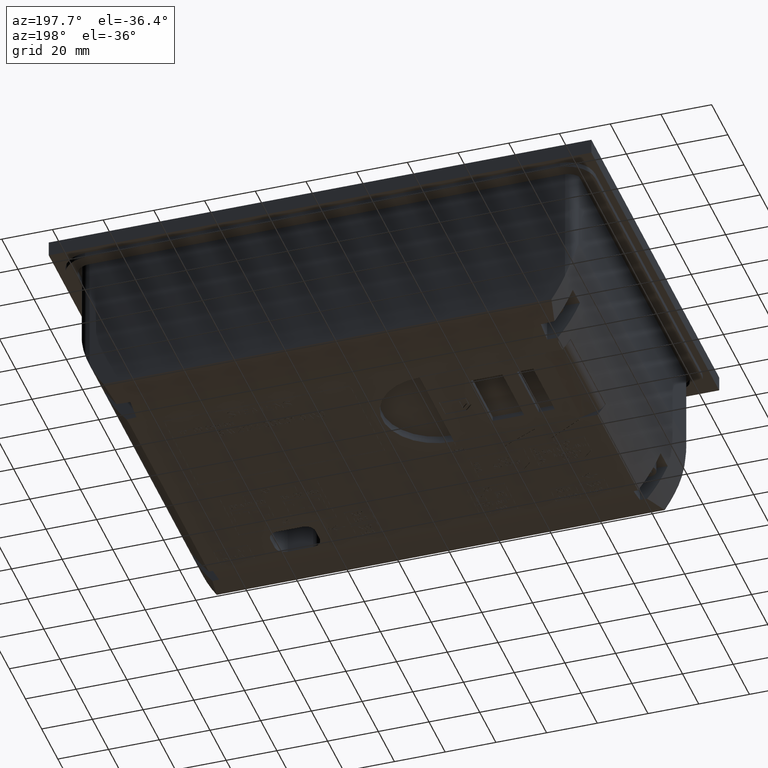
[diagram: clean part render]
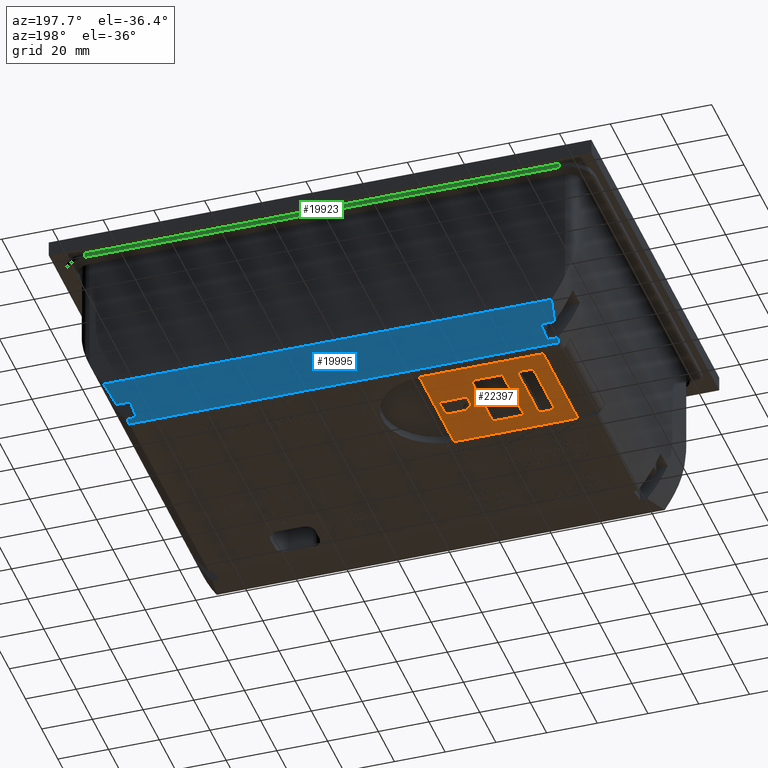
[diagram: same view with three faces highlighted in distinct colors, each labeled with its STEP entity id]
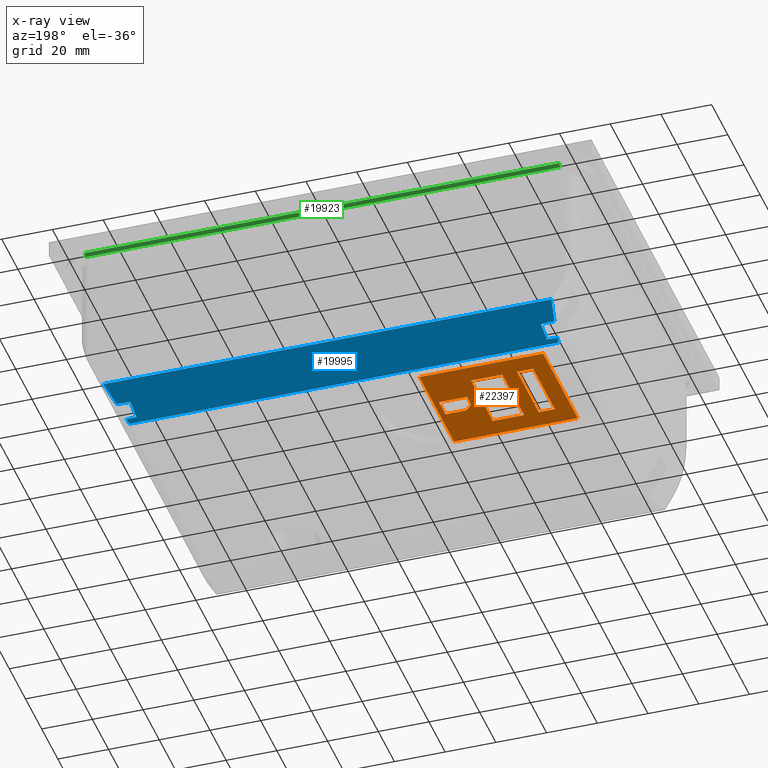
[diagram: x-ray of the same camera — body ghosted, the three highlighted faces saturated]
A machine part, auxiliary view with three faces highlighted in distinct colors.
The next image is the same camera in x-ray (body ghosted, the three faces saturated) — at least one of them is partly hidden behind the body in this view.
Their STEP definitions:

[orange] entity #22397 — the highlighted planar face has unit normal (0, 0, 1).
#6622=LINE('',#91458,#12273);
#6623=LINE('',#91461,#12274);
#6624=LINE('',#91463,#12275);
#6625=LINE('',#91465,#12276);
#6626=LINE('',#91466,#12277);
#6627=LINE('',#91469,#12278);
#6628=LINE('',#91471,#12279);
#6629=LINE('',#91473,#12280);
#6630=LINE('',#91474,#12281);
#6631=LINE('',#91477,#12282);
#6632=LINE('',#91479,#12283);
#6633=LINE('',#91481,#12284);
#6634=LINE('',#91482,#12285);
#6635=LINE('',#91485,#12286);
#6636=LINE('',#91487,#12287);
#6637=LINE('',#91489,#12288);
#6638=LINE('',#91491,#12289);
#12273=VECTOR('',#64264,1.);
#12274=VECTOR('',#64265,1.);
#12275=VECTOR('',#64266,1.);
#12276=VECTOR('',#64267,1.);
#12277=VECTOR('',#64268,1.);
#12278=VECTOR('',#64269,1.);
#12279=VECTOR('',#64270,1.);
#12280=VECTOR('',#64271,1.);
#12281=VECTOR('',#64272,1.);
#12282=VECTOR('',#64273,1.);
#12283=VECTOR('',#64274,1.);
#12284=VECTOR('',#64275,1.);
#12285=VECTOR('',#64276,1.);
#12286=VECTOR('',#64277,1.);
#12287=VECTOR('',#64278,1.);
#12288=VECTOR('',#64279,1.);
#12289=VECTOR('',#64280,1.);
#17203=PLANE('',#52997);
#22397=ADVANCED_FACE('',(#23166,#23167,#23168,#23169),#17203,.F.);
#23166=FACE_BOUND('',#26152,.T.);
#23167=FACE_BOUND('',#26153,.T.);
#23168=FACE_BOUND('',#26154,.T.);
#23169=FACE_BOUND('',#26155,.T.);
#26152=EDGE_LOOP('',(#38843,#38844,#38845,#38846));
#26153=EDGE_LOOP('',(#38847,#38848,#38849,#38850));
#26154=EDGE_LOOP('',(#38851,#38852,#38853,#38854));
#26155=EDGE_LOOP('',(#38855,#38856,#38857,#38858,#38859));
#38843=ORIENTED_EDGE('',*,*,#49674,.F.);
#38844=ORIENTED_EDGE('',*,*,#49675,.F.);
#38845=ORIENTED_EDGE('',*,*,#49676,.F.);
#38846=ORIENTED_EDGE('',*,*,#49677,.F.);
#38847=ORIENTED_EDGE('',*,*,#49678,.T.);
#38848=ORIENTED_EDGE('',*,*,#49679,.F.);
#38849=ORIENTED_EDGE('',*,*,#49680,.F.);
#38850=ORIENTED_EDGE('',*,*,#49681,.T.);
#38851=ORIENTED_EDGE('',*,*,#49682,.T.);
#38852=ORIENTED_EDGE('',*,*,#49683,.T.);
#38853=ORIENTED_EDGE('',*,*,#49684,.T.);
#38854=ORIENTED_EDGE('',*,*,#49685,.T.);
#38855=ORIENTED_EDGE('',*,*,#49686,.T.);
#38856=ORIENTED_EDGE('',*,*,#49687,.T.);
#38857=ORIENTED_EDGE('',*,*,#49688,.T.);
#38858=ORIENTED_EDGE('',*,*,#49689,.T.);
#38859=ORIENTED_EDGE('',*,*,#49690,.T.);
#43288=VERTEX_POINT('',#91459);
#43289=VERTEX_POINT('',#91460);
#43290=VERTEX_POINT('',#91462);
#43291=VERTEX_POINT('',#91464);
#43292=VERTEX_POINT('',#91467);
#43293=VERTEX_POINT('',#91468);
#43294=VERTEX_POINT('',#91470);
#43295=VERTEX_POINT('',#91472);
#43296=VERTEX_POINT('',#91475);
#43297=VERTEX_POINT('',#91476);
#43298=VERTEX_POINT('',#91478);
#43299=VERTEX_POINT('',#91480);
#43300=VERTEX_POINT('',#91483);
#43301=VERTEX_POINT('',#91484);
#43302=VERTEX_POINT('',#91486);
#43303=VERTEX_POINT('',#91488);
#43304=VERTEX_POINT('',#91490);
#49674=EDGE_CURVE('',#43288,#43289,#6622,.T.);
#49675=EDGE_CURVE('',#43290,#43288,#6623,.T.);
#49676=EDGE_CURVE('',#43291,#43290,#6624,.T.);
#49677=EDGE_CURVE('',#43289,#43291,#6625,.T.);
#49678=EDGE_CURVE('',#43292,#43293,#6626,.T.);
#49679=EDGE_CURVE('',#43294,#43293,#6627,.T.);
#49680=EDGE_CURVE('',#43295,#43294,#6628,.T.);
#49681=EDGE_CURVE('',#43295,#43292,#6629,.T.);
#49682=EDGE_CURVE('',#43296,#43297,#6630,.T.);
#49683=EDGE_CURVE('',#43297,#43298,#6631,.T.);
#49684=EDGE_CURVE('',#43298,#43299,#6632,.T.);
#49685=EDGE_CURVE('',#43299,#43296,#6633,.T.);
#49686=EDGE_CURVE('',#43300,#43301,#6634,.T.);
#49687=EDGE_CURVE('',#43301,#43302,#6635,.T.);
#49688=EDGE_CURVE('',#43302,#43303,#6636,.T.);
#49689=EDGE_CURVE('',#43303,#43304,#6637,.T.);
#49690=EDGE_CURVE('',#43304,#43300,#6638,.T.);
#52997=AXIS2_PLACEMENT_3D('',#91492,#64281,#64282);
#64264=DIRECTION('',(-2.91445848928636E-011,1.,-3.65212902658751E-020));
#64265=DIRECTION('',(-1.,-1.7851496621565E-010,-1.25310723759245E-009));
#64266=DIRECTION('',(2.91451016133376E-011,-1.,3.65219377720409E-020));
#64267=DIRECTION('',(1.,1.78514966148795E-010,1.25310723759245E-009));
#64268=DIRECTION('',(-1.,0.,-1.25310723759245E-009));
#64269=DIRECTION('',(0.,-1.,0.));
#64270=DIRECTION('',(-1.,0.,-1.25310723759245E-009));
#64271=DIRECTION('',(0.,-1.,0.));
#64272=DIRECTION('',(-1.,-7.140737732797E-011,-1.25310723759245E-009));
#64273=DIRECTION('',(2.91451016133376E-011,-1.,3.65219377720409E-020));
#64274=DIRECTION('',(1.,7.14044293848278E-011,1.25310723759245E-009));
#64275=DIRECTION('',(-2.91449724332191E-011,1.,-3.65217758954994E-020));
#64276=DIRECTION('',(0.,-1.,0.));
#64277=DIRECTION('',(0.707106781186548,-0.707106781186547,8.8608062765984E-010));
#64278=DIRECTION('',(1.,0.,1.25310725232033E-009));
#64279=DIRECTION('',(0.,1.,0.));
#64280=DIRECTION('',(-1.,0.,-1.25310724943691E-009));
#64281=DIRECTION('',(-1.25310723759245E-009,0.,1.));
#64282=DIRECTION('',(1.,0.,1.25310723755011E-009));
#91458=CARTESIAN_POINT('',(-42.3121376768033,42.9019999987664,-1.89999998678827));
#91459=CARTESIAN_POINT('',(-42.3121376757871,8.0375645485555,-1.89999998280499));
#91460=CARTESIAN_POINT('',(-42.3121376765699,34.8950019971096,-1.89999998280499));
#91461=CARTESIAN_POINT('',(0.0165808718131422,8.03756455611181,-1.89999993374584));
#91462=CARTESIAN_POINT('',(-35.9547002272291,8.0375645496904,-1.89999997882172));
#91463=CARTESIAN_POINT('',(-35.9547002282452,42.9019999989516,-1.89999997882172));
#91464=CARTESIAN_POINT('',(-35.954700225631,34.8950019982445,-1.89999997882172));
#91465=CARTESIAN_POINT('',(0.0165808670186877,34.8950020046659,-1.89999993374584));
#91466=CARTESIAN_POINT('',(0.0165808655893187,0.,-1.89999993374584));
#91467=CARTESIAN_POINT('',(0.0165808655893211,0.,-1.89999993374584));
#91468=CARTESIAN_POINT('',(-48.81855296411,0.,-1.8999999949415));
#91469=CARTESIAN_POINT('',(-48.81855296411,42.902,-1.8999999949415));
#91470=CARTESIAN_POINT('',(-48.81855296411,42.902,-1.8999999949415));
#91471=CARTESIAN_POINT('',(0.0165808655893187,42.902,-1.89999993374584));
#91472=CARTESIAN_POINT('',(0.0165808655893211,42.902,-1.89999993374584));
#91473=CARTESIAN_POINT('',(0.0165808655893211,42.902,-1.89999993374584));
#91474=CARTESIAN_POINT('',(0.0165808661610774,34.8950019993908,-1.89999993374584));
#91475=CARTESIAN_POINT('',(-17.8047002280159,34.8950019981182,-1.89999996382042));
#91476=CARTESIAN_POINT('',(-30.1621376765738,34.8950019972358,-1.89999997156301));
#91477=CARTESIAN_POINT('',(-30.1621376768072,42.9019999991204,-1.89999997156301));
#91478=CARTESIAN_POINT('',(-30.162137675791,8.03756454868176,-1.89999996382042));
#91479=CARTESIAN_POINT('',(0.0165808680787938,8.03756455083666,-1.89999993374584));
#91480=CARTESIAN_POINT('',(-17.8047002272331,8.03756454956415,-1.89999995607782));
#91481=CARTESIAN_POINT('',(-17.8047002282492,42.9019999994806,-1.89999995607782));
#91482=CARTESIAN_POINT('',(-13.1860598577541,25.4662832734,-1.89999995029017));
#91483=CARTESIAN_POINT('',(-13.18605985813,25.4662832734,-1.89999995029017));
#91484=CARTESIAN_POINT('',(-13.1860598577541,20.266283273391,-1.89999995029017));
#91485=CARTESIAN_POINT('',(-13.1860598577541,20.266283273391,-1.89999995029017));
#91486=CARTESIAN_POINT('',(-10.3860598577631,17.4662832734,-1.89999994678147));
#91487=CARTESIAN_POINT('',(-10.3860598577631,17.4662832734,-1.89999994678147));
#91488=CARTESIAN_POINT('',(-2.18605985775406,17.4662832734,-1.89999993650599));
#91489=CARTESIAN_POINT('',(-2.18605985775406,17.4662832734,-1.89999993650599));
#91490=CARTESIAN_POINT('',(-2.18605985775406,25.4662832734,-1.89999993650599));
#91491=CARTESIAN_POINT('',(-2.18605985775406,25.4662832734,-1.89999993650599));
#91492=CARTESIAN_POINT('',(0.0165808655893187,42.902,-1.89999993374584));

[blue] entity #19995 — the highlighted cylindrical surface (partial cylindrical patch) has radius 150 mm, axis along (-1, 0, 0).
#95=ELLIPSE('',#50681,3438.83786308085,150.000000977651);
#96=ELLIPSE('',#50683,3438.83786248065,150.000000977651);
#97=ELLIPSE('',#50684,3438.83786248065,150.000000977651);
#98=ELLIPSE('',#50686,3438.83786308085,150.000000977651);
#433=B_SPLINE_CURVE_WITH_KNOTS('',3,(#66333,#66334,#66335,#66336),.UNSPECIFIED.,
 .F.,.F.,(4,4),(0.,1.),.UNSPECIFIED.);
#434=B_SPLINE_CURVE_WITH_KNOTS('',3,(#66344,#66345,#66346,#66347),.UNSPECIFIED.,
 .F.,.F.,(4,4),(0.,1.),.UNSPECIFIED.);
#439=B_SPLINE_CURVE_WITH_KNOTS('',3,(#66430,#66431,#66432,#66433),.UNSPECIFIED.,
 .F.,.F.,(4,4),(0.,1.),.UNSPECIFIED.);
#440=B_SPLINE_CURVE_WITH_KNOTS('',3,(#66441,#66442,#66443,#66444),.UNSPECIFIED.,
 .F.,.F.,(4,4),(0.,1.),.UNSPECIFIED.);
#1831=LINE('',#66286,#7216);
#1860=LINE('',#66469,#7245);
#7216=VECTOR('',#54503,1.);
#7245=VECTOR('',#54580,1.);
#17478=FACE_OUTER_BOUND('',#23531,.T.);
#19995=ADVANCED_FACE('',(#17478),#22536,.T.);
#22536=CYLINDRICAL_SURFACE('',#50687,150.000000977651);
#23531=EDGE_LOOP('',(#27659,#27660,#27661,#27662,#27663,#27664,#27665,#27666,
#27667,#27668,#27669,#27670));
#27659=ORIENTED_EDGE('',*,*,#44099,.T.);
#27660=ORIENTED_EDGE('',*,*,#44146,.T.);
#27661=ORIENTED_EDGE('',*,*,#44147,.T.);
#27662=ORIENTED_EDGE('',*,*,#44148,.T.);
#27663=ORIENTED_EDGE('',*,*,#44095,.T.);
#27664=ORIENTED_EDGE('',*,*,#44074,.T.);
#27665=ORIENTED_EDGE('',*,*,#44119,.T.);
#27666=ORIENTED_EDGE('',*,*,#44149,.T.);
#27667=ORIENTED_EDGE('',*,*,#44150,.T.);
#27668=ORIENTED_EDGE('',*,*,#44151,.T.);
#27669=ORIENTED_EDGE('',*,*,#44115,.T.);
#27670=ORIENTED_EDGE('',*,*,#44132,.F.);
#39554=VERTEX_POINT('',#66285);
#39555=VERTEX_POINT('',#66287);
#39573=VERTEX_POINT('',#66337);
#39576=VERTEX_POINT('',#66343);
#39577=VERTEX_POINT('',#66348);
#39590=VERTEX_POINT('',#66429);
#39591=VERTEX_POINT('',#66434);
#39594=VERTEX_POINT('',#66440);
#39611=VERTEX_POINT('',#66498);
#39612=VERTEX_POINT('',#66500);
#39613=VERTEX_POINT('',#66503);
#39614=VERTEX_POINT('',#66505);
#44074=EDGE_CURVE('',#39555,#39554,#1831,.T.);
#44095=EDGE_CURVE('',#39573,#39555,#433,.T.);
#44099=EDGE_CURVE('',#39577,#39576,#434,.T.);
#44115=EDGE_CURVE('',#39591,#39590,#439,.T.);
#44119=EDGE_CURVE('',#39554,#39594,#440,.T.);
#44132=EDGE_CURVE('',#39577,#39590,#1860,.T.);
#44146=EDGE_CURVE('',#39576,#39611,#95,.T.);
#44147=EDGE_CURVE('',#39611,#39612,#49989,.T.);
#44148=EDGE_CURVE('',#39612,#39573,#96,.T.);
#44149=EDGE_CURVE('',#39594,#39613,#97,.T.);
#44150=EDGE_CURVE('',#39613,#39614,#49990,.T.);
#44151=EDGE_CURVE('',#39614,#39591,#98,.T.);
#49989=CIRCLE('',#50682,150.000000977651);
#49990=CIRCLE('',#50685,150.000000977651);
#50681=AXIS2_PLACEMENT_3D('',#66497,#54614,#54615);
#50682=AXIS2_PLACEMENT_3D('',#66499,#54616,#54617);
#50683=AXIS2_PLACEMENT_3D('',#66501,#54618,#54619);
#50684=AXIS2_PLACEMENT_3D('',#66502,#54620,#54621);
#50685=AXIS2_PLACEMENT_3D('',#66504,#54622,#54623);
#50686=AXIS2_PLACEMENT_3D('',#66506,#54624,#54625);
#50687=AXIS2_PLACEMENT_3D('',#66507,#54626,#54627);
#54503=DIRECTION('',(-1.,0.,0.));
#54580=DIRECTION('',(-1.,0.,0.));
#54614=DIRECTION('',(-0.043619387406438,0.999048221580064,0.));
#54615=DIRECTION('',(-0.999048221580063,-0.0436193874064379,0.));
#54616=DIRECTION('',(-1.,0.,0.));
#54617=DIRECTION('',(0.,0.,1.));
#54618=DIRECTION('',(-0.0436193874140512,-0.999048221579731,0.));
#54619=DIRECTION('',(-0.999048221579731,0.0436193874140512,0.));
#54620=DIRECTION('',(0.0436193874140512,-0.999048221579731,0.));
#54621=DIRECTION('',(-0.999048221579731,-0.0436193874140512,0.));
#54622=DIRECTION('',(1.,0.,0.));
#54623=DIRECTION('',(0.,0.,-1.));
#54624=DIRECTION('',(0.043619387406438,0.999048221580064,0.));
#54625=DIRECTION('',(-0.999048221580063,0.0436193874064379,0.));
#54626=DIRECTION('',(-1.,0.,0.));
#54627=DIRECTION('',(0.,0.,1.));
#66285=CARTESIAN_POINT('',(-84.6864665830328,49.5000000250498,-69.0000000000722));
#66286=CARTESIAN_POINT('',(101.98540477914,49.5000000250498,-69.0000000000722));
#66287=CARTESIAN_POINT('',(84.6139886853391,49.5000000250498,-69.0000000000722));
#66333=CARTESIAN_POINT('',(84.9766973603551,51.984444300411,-68.5576021675339));
#66334=CARTESIAN_POINT('',(84.8514876000279,51.1587129393417,-68.711814859945));
#66335=CARTESIAN_POINT('',(84.7304728165404,50.3305890308896,-68.8592971241312));
#66336=CARTESIAN_POINT('',(84.6139886853391,49.5000000250498,-69.0000000000722));
#66337=CARTESIAN_POINT('',(84.9766973603551,51.984444300411,-68.5576021675339));
#66343=CARTESIAN_POINT('',(86.3395467440313,60.0750589887513,-66.814336646516));
#66344=CARTESIAN_POINT('',(88.3211971106209,70.01459522086,-64.0180751598463));
#66345=CARTESIAN_POINT('',(87.624231477273,66.7355487725983,-65.0636145236366));
#66346=CARTESIAN_POINT('',(86.955702167718,63.4237657687399,-65.99551150518));
#66347=CARTESIAN_POINT('',(86.3395467440409,60.0750589887496,-66.8143366465163));
#66348=CARTESIAN_POINT('',(88.3211971106207,70.01459522086,-64.0180751598466));
#66429=CARTESIAN_POINT('',(-88.3773316654411,70.01459522086,-64.0180751598466));
#66430=CARTESIAN_POINT('',(-86.4049088601822,60.0779127603746,-66.8136388132069));
#66431=CARTESIAN_POINT('',(-87.018197041221,63.4255835382713,-65.994997507914));
#66432=CARTESIAN_POINT('',(-87.6836186028934,66.7364276589531,-65.0633342865937));
#66433=CARTESIAN_POINT('',(-88.3773316654411,70.014595220859,-64.0180751598466));
#66434=CARTESIAN_POINT('',(-86.4049088601776,60.0779127603754,-66.8136388132067));
#66440=CARTESIAN_POINT('',(-85.0470959344576,51.9813706322832,-68.5581761693029));
#66441=CARTESIAN_POINT('',(-84.6864665830328,49.5000000250498,-69.0000000000722));
#66442=CARTESIAN_POINT('',(-84.8022861209518,50.3295520206521,-68.8594727950367));
#66443=CARTESIAN_POINT('',(-84.9226068103095,51.1566516714687,-68.7121819958151));
#66444=CARTESIAN_POINT('',(-85.0470959344631,51.9813706322823,-68.5581761693031));
#66469=CARTESIAN_POINT('',(101.98540477914,70.014595220859,-64.0180751598466));
#66497=CARTESIAN_POINT('',(-729.683270789699,24.4467333067318,78.892981983645));
#66498=CARTESIAN_POINT('',(80.98724977297,59.8413726560477,-66.8712790635237));
#66499=CARTESIAN_POINT('',(80.98724977297,24.4467333067318,78.892981983645));
#66500=CARTESIAN_POINT('',(80.98724977297,52.1586273439556,-68.5249654385227));
#66501=CARTESIAN_POINT('',(715.693972994304,24.4467333067318,78.892981983645));
#66502=CARTESIAN_POINT('',(-715.693972994304,24.4467333067318,78.892981983645));
#66503=CARTESIAN_POINT('',(-80.98724977297,52.1586273439556,-68.5249654385226));
#66504=CARTESIAN_POINT('',(-80.98724977297,24.4467333067318,78.892981983645));
#66505=CARTESIAN_POINT('',(-80.98724977297,59.8413726560477,-66.8712790635237));
#66506=CARTESIAN_POINT('',(729.683270789699,24.4467333067318,78.892981983645));
#66507=CARTESIAN_POINT('',(101.98540477914,24.4467333067318,78.892981983645));

[green] entity #19923 — the highlighted planar face has unit normal (0, 1, 0).
#1677=LINE('',#65845,#7062);
#1678=LINE('',#65847,#7063);
#1679=LINE('',#65849,#7064);
#1680=LINE('',#65851,#7065);
#7062=VECTOR('',#54115,1.);
#7063=VECTOR('',#54118,1.);
#7064=VECTOR('',#54119,1.);
#7065=VECTOR('',#54120,1.);
#15119=PLANE('',#50529);
#17423=FACE_OUTER_BOUND('',#23435,.T.);
#19923=ADVANCED_FACE('',(#17423),#15119,.T.);
#23435=EDGE_LOOP('',(#27193,#27194,#27195,#27196));
#27193=ORIENTED_EDGE('',*,*,#43864,.F.);
#27194=ORIENTED_EDGE('',*,*,#43863,.F.);
#27195=ORIENTED_EDGE('',*,*,#43865,.T.);
#27196=ORIENTED_EDGE('',*,*,#43866,.T.);
#39383=VERTEX_POINT('',#65842);
#39384=VERTEX_POINT('',#65844);
#39385=VERTEX_POINT('',#65848);
#39386=VERTEX_POINT('',#65850);
#43863=EDGE_CURVE('',#39384,#39383,#1677,.T.);
#43864=EDGE_CURVE('',#39383,#39385,#1678,.T.);
#43865=EDGE_CURVE('',#39384,#39386,#1679,.T.);
#43866=EDGE_CURVE('',#39386,#39385,#1680,.T.);
#50529=AXIS2_PLACEMENT_3D('',#65852,#54121,#54122);
#54115=DIRECTION('',(0.,0.,1.));
#54118=DIRECTION('',(-1.,0.,0.));
#54119=DIRECTION('',(-1.,0.,0.));
#54120=DIRECTION('',(0.,0.,1.));
#54121=DIRECTION('',(0.,1.,0.));
#54122=DIRECTION('',(0.,0.,1.));
#65842=CARTESIAN_POINT('',(93.6,76.3,-6.));
#65844=CARTESIAN_POINT('',(93.6,76.3,-8.));
#65845=CARTESIAN_POINT('',(93.6,76.3,-8.));
#65847=CARTESIAN_POINT('',(93.6,76.3,-6.));
#65848=CARTESIAN_POINT('',(-93.6,76.3,-6.));
#65849=CARTESIAN_POINT('',(93.6,76.3,-8.));
#65850=CARTESIAN_POINT('',(-93.6,76.3,-8.));
#65851=CARTESIAN_POINT('',(-93.6,76.3,-8.));
#65852=CARTESIAN_POINT('',(93.6,76.3,-8.));